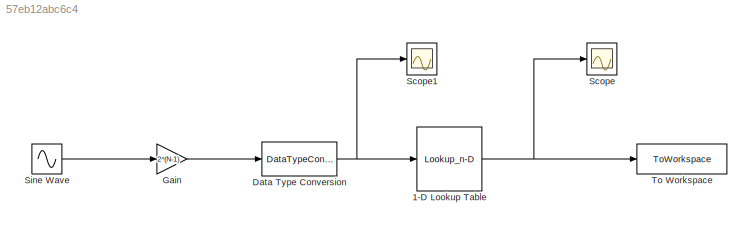
MODEL slx_57eb12abc6c4
KIND model
CONFIG AbsTol = auto
CONFIG EnableMultiTasking = off
CONFIG FixedStep = 1/1024
CONFIG MaxStep = auto
CONFIG MinStep = auto
CONFIG RelTol = 1e-3
CONFIG SampleTimeConstraint = Unconstrained
CONFIG SolverName = FixedStepAuto
CONFIG StartTime = 0.0
CONFIG StopTime = 1
BLOCK [Lookup_n-D] 1-D Lookup Table
  BreakpointsForDimension1 = -2^(N-1):(2^(N-1))-1
  InputPortMap = u0
  InternalRulePriority = Speed
  InterpMethod = Flat
  NumberOfTableDimensions = 1
  OutDataTypeStr = double
  RndMeth = Simplest
  Table = r2r(N)
BLOCK [DataTypeConversion] Data Type Conversion
  OutDataTypeStr = int32
  RndMeth = Nearest
  SaturateOnIntegerOverflow = off
BLOCK [Gain] Gain
  Gain = 2^(N-1)
BLOCK [Scope] Scope
  Floating = off
  NumInputPorts = 1
  ScopeSpecificationString = Simulink.scopes.TimeScopeBlockCfg('CurrentConfiguration', extmgr.ConfigurationSet(extmgr.Configuration('Core','General UI',true),extmgr.Configuration('Core','Source UI',true),extmgr.Configuration('Sources','WiredSimulink',true),extmgr.Configuration('Visuals','Time Domain',true,'SerializedDisplays',{struct('MinYLimReal','-1.25','MaxYLimReal','1.25','YLabelReal','','MinYLimMag','0.00000','MaxYLimMag...<+1373ch>
BLOCK [Scope] Scope1
  Floating = off
  NumInputPorts = 1
  ScopeSpecificationString = Simulink.scopes.TimeScopeBlockCfg('CurrentConfiguration', extmgr.ConfigurationSet(extmgr.Configuration('Core','General UI',true),extmgr.Configuration('Core','Source UI',true),extmgr.Configuration('Sources','WiredSimulink',true,'DataLoggingVariableName','ScopeData1'),extmgr.Configuration('Visuals','Time Domain',true,'SerializedDisplays',{struct('MinYLimReal','-640.00000','MaxYLimReal','640.00000','...<+1448ch>
BLOCK [Sin] Sine Wave
  Frequency = 2*pi*5
  SampleTime = 0
BLOCK [ToWorkspace] To Workspace
  FixptAsFi = on
  MaxDataPoints = inf
  SampleTime = -1
  SaveFormat = Timeseries
  VariableName = sin
NET 1-D Lookup Table:1 -> Scope:1, To Workspace:1
NET Data Type Conversion:1 -> 1-D Lookup Table:1, Scope1:1
LINE Gain:1 -> Data Type Conversion:1
LINE Sine Wave:1 -> Gain:1
note: NET lines group one-source signal fan-out (src -> all destinations, sorted); 1:1 wires keep LINE
